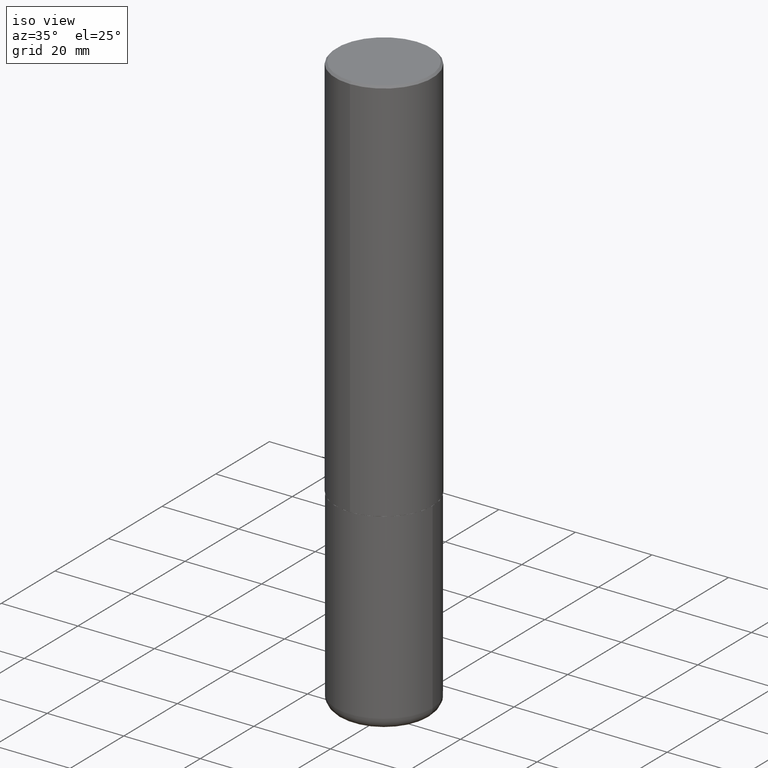
[diagram: clean part render]
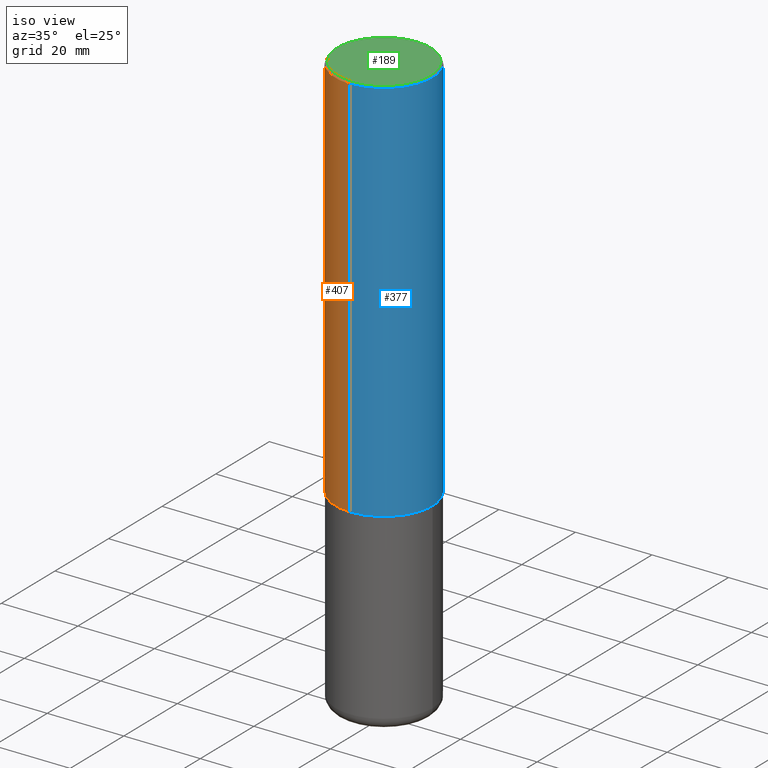
[diagram: same view with three faces highlighted in distinct colors, each labeled with its STEP entity id]
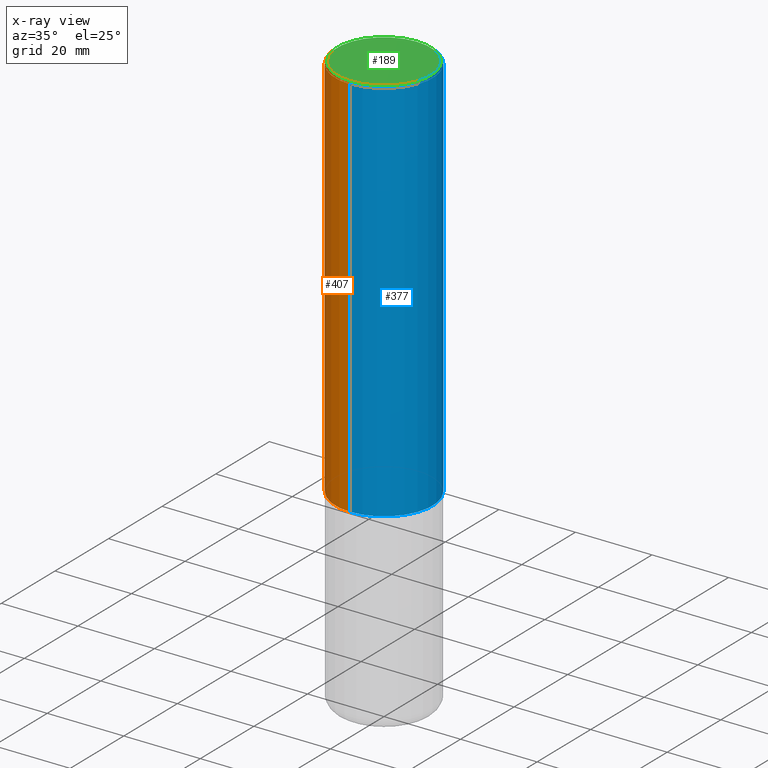
[diagram: x-ray of the same camera — body ghosted, the three highlighted faces saturated]
A machine part, iso view with three faces highlighted in distinct colors.
The next image is the same camera in x-ray (body ghosted, the three faces saturated) — at least one of them is partly hidden behind the body in this view.
Their STEP definitions:

[orange] entity #407 — the highlighted cylindrical surface (partial cylindrical patch) has radius 12.7 mm, axis along (-0, 0, 1).
#17 = CIRCLE ( 'NONE', #417, 0.5000000000000000000 ) ;
#27 = DIRECTION ( 'NONE',  ( -2.445400688795312216E-29, 3.491578886822374431E-15, 1.000000000000000000 ) ) ;
#31 = ORIENTED_EDGE ( 'NONE', *, *, #325, .T. ) ;
#32 = CARTESIAN_POINT ( 'NONE',  ( 0.000000000000000000, 0.000000000000000000, 0.000000000000000000 ) ) ;
#38 = EDGE_CURVE ( 'NONE', #113, #398, #258, .T. ) ;
#56 = CARTESIAN_POINT ( 'NONE',  ( 3.552713678800502507E-15, 0.5000000000000002220, -1.745789443411188201E-15 ) ) ;
#72 = FACE_OUTER_BOUND ( 'NONE', #111, .T. ) ;
#80 = CARTESIAN_POINT ( 'NONE',  ( 4.890801377590651547E-31, -6.983157773644785987E-17, -0.02000000000000010797 ) ) ;
#86 = CARTESIAN_POINT ( 'NONE',  ( -3.491481338843134933E-15, -0.5000000000000002220, 1.745789443411188201E-15 ) ) ;
#104 = DIRECTION ( 'NONE',  ( -2.445400688795312496E-29, 3.491578886822374431E-15, 1.000000000000000000 ) ) ;
#110 = DIRECTION ( 'NONE',  ( -6.982962677686265922E-15, -1.000000000000000000, 3.491643216902136408E-15 ) ) ;
#111 = EDGE_LOOP ( 'NONE', ( #127, #277, #31, #328 ) ) ;
#112 = DIRECTION ( 'NONE',  ( -2.445400688795312496E-29, 3.491578886822374431E-15, 1.000000000000000000 ) ) ;
#113 = VERTEX_POINT ( 'NONE', #364 ) ;
#127 = ORIENTED_EDGE ( 'NONE', *, *, #249, .F. ) ;
#134 = VECTOR ( 'NONE', #27, 39.37007874015748143 ) ;
#143 = CARTESIAN_POINT ( 'NONE',  ( 9.779157354492455145E-29, -1.396282396840267582E-14, -3.999000000000000110 ) ) ;
#163 = VECTOR ( 'NONE', #367, 39.37007874015748143 ) ;
#164 = CARTESIAN_POINT ( 'NONE',  ( 3.491481338843133355E-15, 0.4999999999999999445, -0.02000000000000185310 ) ) ;
#174 = EDGE_CURVE ( 'NONE', #414, #283, #17, .T. ) ;
#192 = DIRECTION ( 'NONE',  ( -6.982962677686266711E-15, -1.000000000000000000, 3.491578886822374825E-15 ) ) ;
#214 = AXIS2_PLACEMENT_3D ( 'NONE', #32, #104, #192 ) ;
#223 = AXIS2_PLACEMENT_3D ( 'NONE', #143, #112, #293 ) ;
#246 = CARTESIAN_POINT ( 'NONE',  ( -3.491481338843038692E-15, -0.5000000000000144329, -3.998999999999998334 ) ) ;
#249 = EDGE_CURVE ( 'NONE', #113, #414, #338, .T. ) ;
#258 = CIRCLE ( 'NONE', #223, 0.5000000000000005551 ) ;
#276 = LINE ( 'NONE', #86, #163 ) ;
#277 = ORIENTED_EDGE ( 'NONE', *, *, #38, .T. ) ;
#283 = VERTEX_POINT ( 'NONE', #311 ) ;
#293 = DIRECTION ( 'NONE',  ( -6.982962677686265922E-15, -1.000000000000000000, 3.278217592397112312E-15 ) ) ;
#311 = CARTESIAN_POINT ( 'NONE',  ( -3.430248998885764992E-15, -0.5000000000000001110, -0.01999999999999835937 ) ) ;
#325 = EDGE_CURVE ( 'NONE', #398, #283, #276, .T. ) ;
#328 = ORIENTED_EDGE ( 'NONE', *, *, #174, .F. ) ;
#338 = LINE ( 'NONE', #56, #134 ) ;
#350 = CYLINDRICAL_SURFACE ( 'NONE', #214, 0.5000000000000002220 ) ;
#364 = CARTESIAN_POINT ( 'NONE',  ( 3.552713678800552205E-15, 0.4999999999999866218, -3.999000000000001886 ) ) ;
#367 = DIRECTION ( 'NONE',  ( -2.445400688795312216E-29, 3.491578886822374431E-15, 1.000000000000000000 ) ) ;
#394 = DIRECTION ( 'NONE',  ( -2.445400688795312496E-29, 3.491578886822374431E-15, 1.000000000000000000 ) ) ;
#398 = VERTEX_POINT ( 'NONE', #246 ) ;
#407 = ADVANCED_FACE ( 'NONE', ( #72 ), #350, .T. ) ;
#414 = VERTEX_POINT ( 'NONE', #164 ) ;
#417 = AXIS2_PLACEMENT_3D ( 'NONE', #80, #394, #110 ) ;

[blue] entity #377 — the highlighted cylindrical surface (partial cylindrical patch) has radius 12.7 mm, axis along (-0, 0, 1).
#13 = AXIS2_PLACEMENT_3D ( 'NONE', #96, #37, #282 ) ;
#19 = EDGE_CURVE ( 'NONE', #398, #113, #313, .T. ) ;
#27 = DIRECTION ( 'NONE',  ( -2.445400688795312216E-29, 3.491578886822374431E-15, 1.000000000000000000 ) ) ;
#36 = DIRECTION ( 'NONE',  ( -2.445400688795312496E-29, 3.491578886822374431E-15, 1.000000000000000000 ) ) ;
#37 = DIRECTION ( 'NONE',  ( -2.445400688795312496E-29, 3.491578886822374431E-15, 1.000000000000000000 ) ) ;
#53 = ORIENTED_EDGE ( 'NONE', *, *, #325, .F. ) ;
#55 = CIRCLE ( 'NONE', #13, 0.5000000000000000000 ) ;
#56 = CARTESIAN_POINT ( 'NONE',  ( 3.552713678800502507E-15, 0.5000000000000002220, -1.745789443411188201E-15 ) ) ;
#86 = CARTESIAN_POINT ( 'NONE',  ( -3.491481338843134933E-15, -0.5000000000000002220, 1.745789443411188201E-15 ) ) ;
#96 = CARTESIAN_POINT ( 'NONE',  ( 4.890801377590651547E-31, -6.983157773644785987E-17, -0.02000000000000010797 ) ) ;
#113 = VERTEX_POINT ( 'NONE', #364 ) ;
#119 = CYLINDRICAL_SURFACE ( 'NONE', #148, 0.5000000000000002220 ) ;
#123 = ORIENTED_EDGE ( 'NONE', *, *, #19, .T. ) ;
#134 = VECTOR ( 'NONE', #27, 39.37007874015748143 ) ;
#148 = AXIS2_PLACEMENT_3D ( 'NONE', #343, #308, #412 ) ;
#163 = VECTOR ( 'NONE', #367, 39.37007874015748143 ) ;
#164 = CARTESIAN_POINT ( 'NONE',  ( 3.491481338843133355E-15, 0.4999999999999999445, -0.02000000000000185310 ) ) ;
#167 = DIRECTION ( 'NONE',  ( -6.982962677686265922E-15, -1.000000000000000000, 3.278217592397112312E-15 ) ) ;
#191 = ORIENTED_EDGE ( 'NONE', *, *, #249, .T. ) ;
#216 = FACE_OUTER_BOUND ( 'NONE', #341, .T. ) ;
#246 = CARTESIAN_POINT ( 'NONE',  ( -3.491481338843038692E-15, -0.5000000000000144329, -3.998999999999998334 ) ) ;
#249 = EDGE_CURVE ( 'NONE', #113, #414, #338, .T. ) ;
#276 = LINE ( 'NONE', #86, #163 ) ;
#282 = DIRECTION ( 'NONE',  ( -6.982962677686265922E-15, -1.000000000000000000, 3.491643216902136408E-15 ) ) ;
#283 = VERTEX_POINT ( 'NONE', #311 ) ;
#308 = DIRECTION ( 'NONE',  ( -2.445400688795312496E-29, 3.491578886822374431E-15, 1.000000000000000000 ) ) ;
#311 = CARTESIAN_POINT ( 'NONE',  ( -3.430248998885764992E-15, -0.5000000000000001110, -0.01999999999999835937 ) ) ;
#313 = CIRCLE ( 'NONE', #329, 0.5000000000000005551 ) ;
#316 = CARTESIAN_POINT ( 'NONE',  ( 9.779157354492455145E-29, -1.396282396840267582E-14, -3.999000000000000110 ) ) ;
#325 = EDGE_CURVE ( 'NONE', #398, #283, #276, .T. ) ;
#329 = AXIS2_PLACEMENT_3D ( 'NONE', #316, #36, #167 ) ;
#338 = LINE ( 'NONE', #56, #134 ) ;
#341 = EDGE_LOOP ( 'NONE', ( #123, #191, #373, #53 ) ) ;
#343 = CARTESIAN_POINT ( 'NONE',  ( 0.000000000000000000, 0.000000000000000000, 0.000000000000000000 ) ) ;
#364 = CARTESIAN_POINT ( 'NONE',  ( 3.552713678800552205E-15, 0.4999999999999866218, -3.999000000000001886 ) ) ;
#367 = DIRECTION ( 'NONE',  ( -2.445400688795312216E-29, 3.491578886822374431E-15, 1.000000000000000000 ) ) ;
#373 = ORIENTED_EDGE ( 'NONE', *, *, #413, .F. ) ;
#377 = ADVANCED_FACE ( 'NONE', ( #216 ), #119, .T. ) ;
#398 = VERTEX_POINT ( 'NONE', #246 ) ;
#412 = DIRECTION ( 'NONE',  ( -6.982962677686266711E-15, -1.000000000000000000, 3.491578886822374825E-15 ) ) ;
#413 = EDGE_CURVE ( 'NONE', #283, #414, #55, .T. ) ;
#414 = VERTEX_POINT ( 'NONE', #164 ) ;

[green] entity #189 — the highlighted planar face has unit normal (0, -0, -1).
#46 = PLANE ( 'NONE',  #403 ) ;
#65 = DIRECTION ( 'NONE',  ( -2.445400688795312496E-29, 3.491578886822374431E-15, 1.000000000000000000 ) ) ;
#74 = AXIS2_PLACEMENT_3D ( 'NONE', #152, #122, #374 ) ;
#87 = ORIENTED_EDGE ( 'NONE', *, *, #368, .T. ) ;
#122 = DIRECTION ( 'NONE',  ( -2.445400688795312496E-29, 3.491578886822374431E-15, 1.000000000000000000 ) ) ;
#130 = CARTESIAN_POINT ( 'NONE',  ( -5.846550105415713449E-45, 8.347789792631125734E-31, 2.390835224756529802E-16 ) ) ;
#152 = CARTESIAN_POINT ( 'NONE',  ( -5.846550105415713449E-45, 8.347789792631125734E-31, 2.390835224756529802E-16 ) ) ;
#160 = VERTEX_POINT ( 'NONE', #228 ) ;
#171 = CARTESIAN_POINT ( 'NONE',  ( 3.351822085289406364E-15, 0.4799999999999998157, -1.556416104436912533E-15 ) ) ;
#189 = ADVANCED_FACE ( 'NONE', ( #327 ), #46, .F. ) ;
#224 = CIRCLE ( 'NONE', #250, 0.4799999999999998157 ) ;
#228 = CARTESIAN_POINT ( 'NONE',  ( 3.421651712066270057E-15, 0.4799999999999998157, -1.436874343199086190E-15 ) ) ;
#250 = AXIS2_PLACEMENT_3D ( 'NONE', #130, #65, #280 ) ;
#279 = VERTEX_POINT ( 'NONE', #408 ) ;
#280 = DIRECTION ( 'NONE',  ( -6.982962677686265922E-15, -1.000000000000000000, 3.491578886822374036E-15 ) ) ;
#327 = FACE_OUTER_BOUND ( 'NONE', #344, .T. ) ;
#344 = EDGE_LOOP ( 'NONE', ( #87, #406 ) ) ;
#345 = DIRECTION ( 'NONE',  ( 6.982962677686265922E-15, 1.000000000000000000, -3.491578886822374431E-15 ) ) ;
#365 = CIRCLE ( 'NONE', #74, 0.4799999999999998157 ) ;
#368 = EDGE_CURVE ( 'NONE', #160, #279, #365, .T. ) ;
#374 = DIRECTION ( 'NONE',  ( -6.982962677686265922E-15, -1.000000000000000000, 3.491578886822374036E-15 ) ) ;
#396 = EDGE_CURVE ( 'NONE', #279, #160, #224, .T. ) ;
#397 = DIRECTION ( 'NONE',  ( 2.445400688795312496E-29, -3.491578886822374431E-15, -1.000000000000000000 ) ) ;
#403 = AXIS2_PLACEMENT_3D ( 'NONE', #171, #397, #345 ) ;
#406 = ORIENTED_EDGE ( 'NONE', *, *, #396, .T. ) ;
#408 = CARTESIAN_POINT ( 'NONE',  ( -3.361644018908049661E-15, -0.4799999999999998157, 1.915041388150391954E-15 ) ) ;